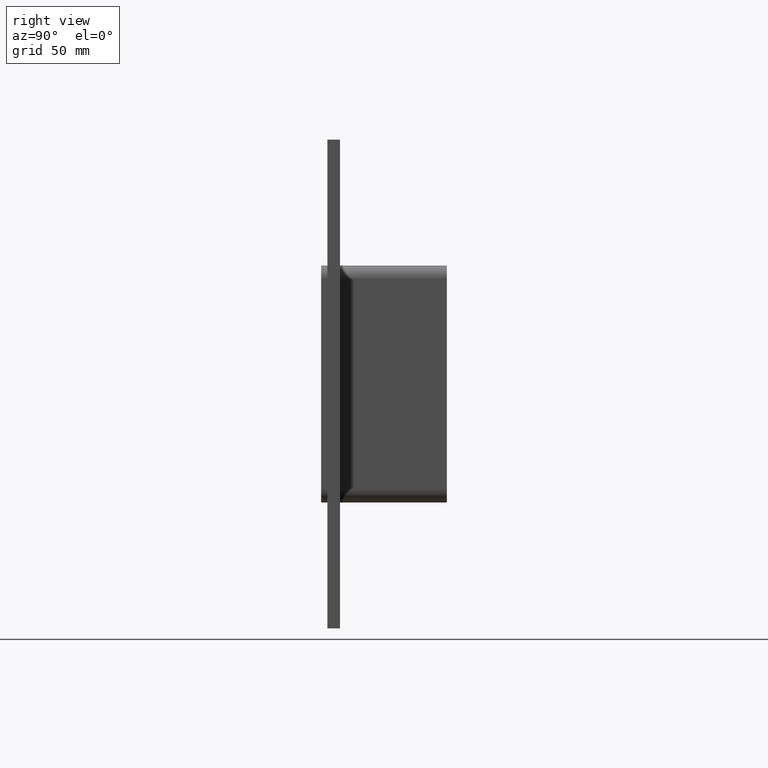
[diagram: clean part render]
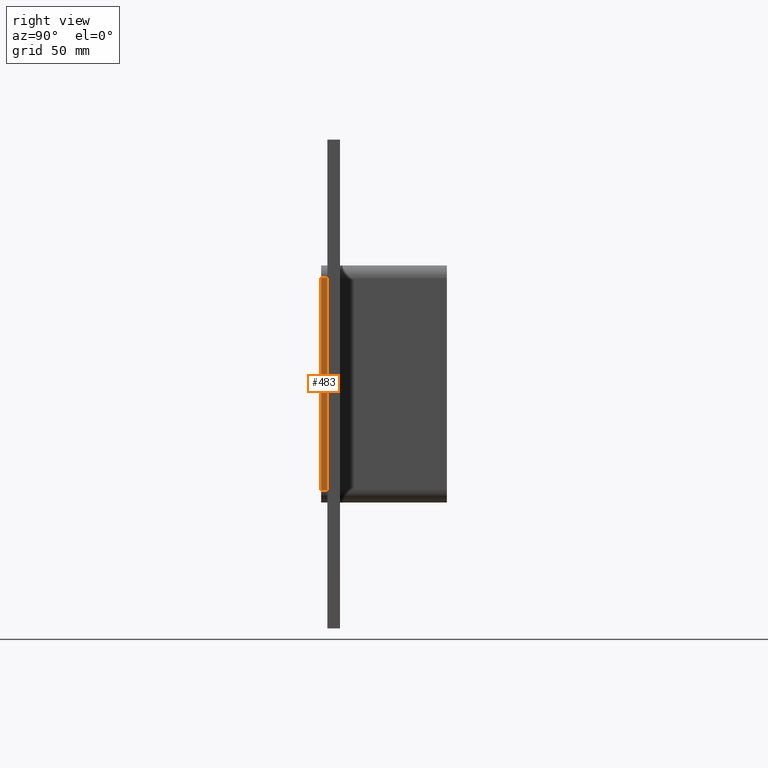
[diagram: same view with one face highlighted and labeled with its STEP entity id]
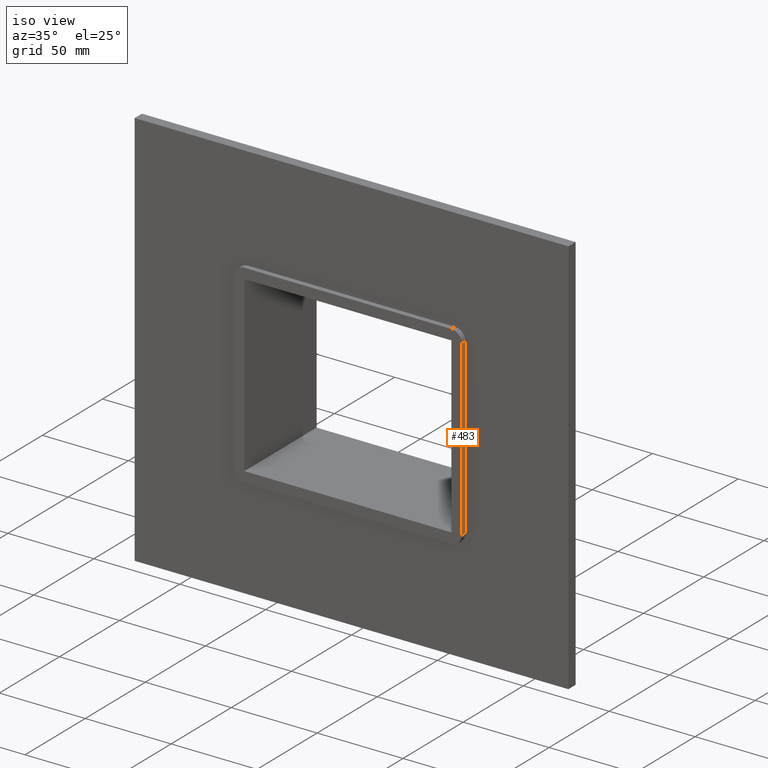
[diagram: same view with one face highlighted and labeled with its STEP entity id]
A machine part, right view. The second image highlights one B-rep face of the part: STEP entity #483.
A second angle (iso view) of the same face is appended — the face is thin or edge-on in the first view.
In plain terms, the highlighted planar face has unit normal (1, 0, 0).
Its self-contained STEP definition (entity closure, byte-faithful):
#253=CARTESIAN_POINT('',(66.250000000000014,0.0,50.500000000000007));
#254=VERTEX_POINT('',#253);
#262=CARTESIAN_POINT('',(66.250000000000014,0.0,-50.500000000000007));
#263=VERTEX_POINT('',#262);
#264=CARTESIAN_POINT('',(66.250000000000014,0.0,-50.5));
#265=DIRECTION('',(0.0,0.0,1.0));
#266=VECTOR('',#265,101.0);
#267=LINE('',#264,#266);
#268=EDGE_CURVE('',#263,#254,#267,.T.);
#410=CARTESIAN_POINT('',(66.250000000000014,-3.0,50.500000000000007));
#411=VERTEX_POINT('',#410);
#419=CARTESIAN_POINT('',(66.250000000000014,-3.0,50.500000000000007));
#420=DIRECTION('',(0.0,1.0,0.0));
#421=VECTOR('',#420,3.0);
#422=LINE('',#419,#421);
#423=EDGE_CURVE('',#411,#254,#422,.T.);
#460=CARTESIAN_POINT('',(66.250000000000014,0.0,56.5));
#461=DIRECTION('',(1.0,0.0,0.0));
#462=DIRECTION('',(0.0,0.0,-1.0));
#463=AXIS2_PLACEMENT_3D('',#460,#461,#462);
#464=PLANE('',#463);
#465=ORIENTED_EDGE('',*,*,#268,.T.);
#466=ORIENTED_EDGE('',*,*,#423,.F.);
#467=CARTESIAN_POINT('',(66.250000000000014,-3.0,-50.500000000000007));
#468=VERTEX_POINT('',#467);
#469=CARTESIAN_POINT('',(66.250000000000014,-3.0,-50.500000000000014));
#470=DIRECTION('',(0.0,0.0,1.0));
#471=VECTOR('',#470,101.00000000000001);
#472=LINE('',#469,#471);
#473=EDGE_CURVE('',#468,#411,#472,.T.);
#474=ORIENTED_EDGE('',*,*,#473,.F.);
#475=CARTESIAN_POINT('',(66.250000000000014,0.0,-50.500000000000007));
#476=DIRECTION('',(0.0,-1.0,0.0));
#477=VECTOR('',#476,3.0);
#478=LINE('',#475,#477);
#479=EDGE_CURVE('',#263,#468,#478,.T.);
#480=ORIENTED_EDGE('',*,*,#479,.F.);
#481=EDGE_LOOP('',(#465,#466,#474,#480));
#482=FACE_OUTER_BOUND('',#481,.T.);
#483=ADVANCED_FACE('',(#482),#464,.T.);